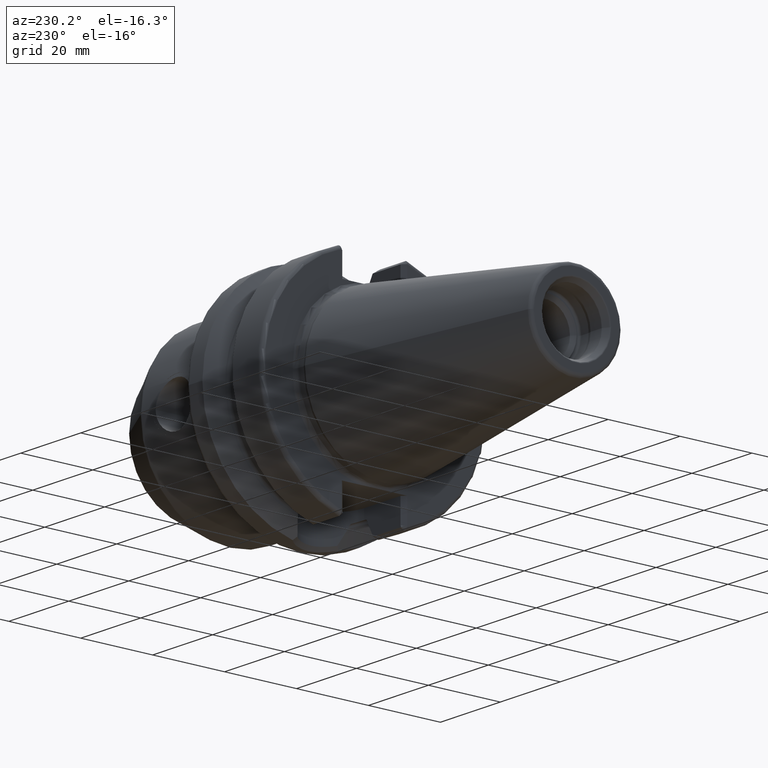
[diagram: clean part render]
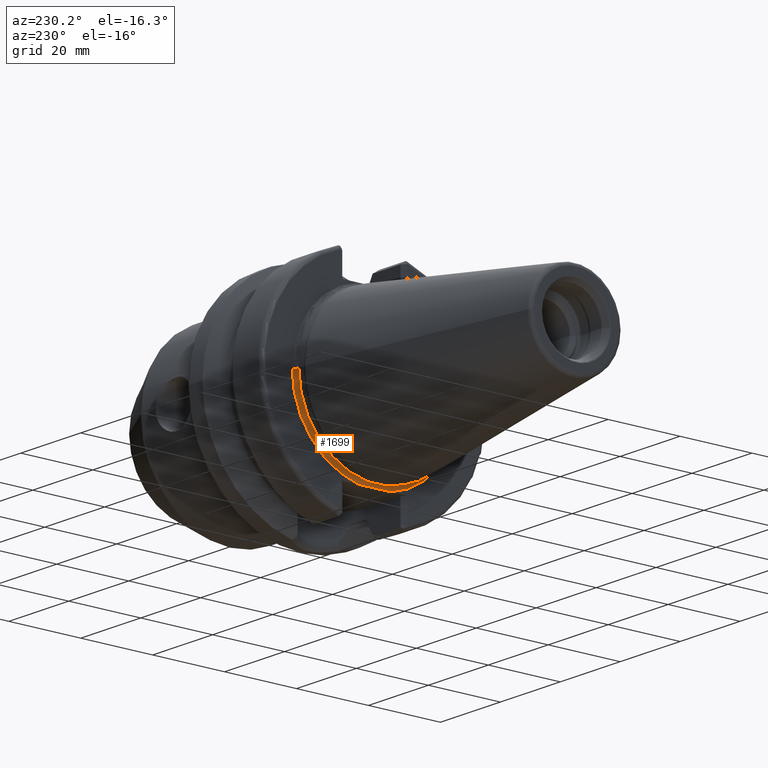
[diagram: same view with one face highlighted and labeled with its STEP entity id]
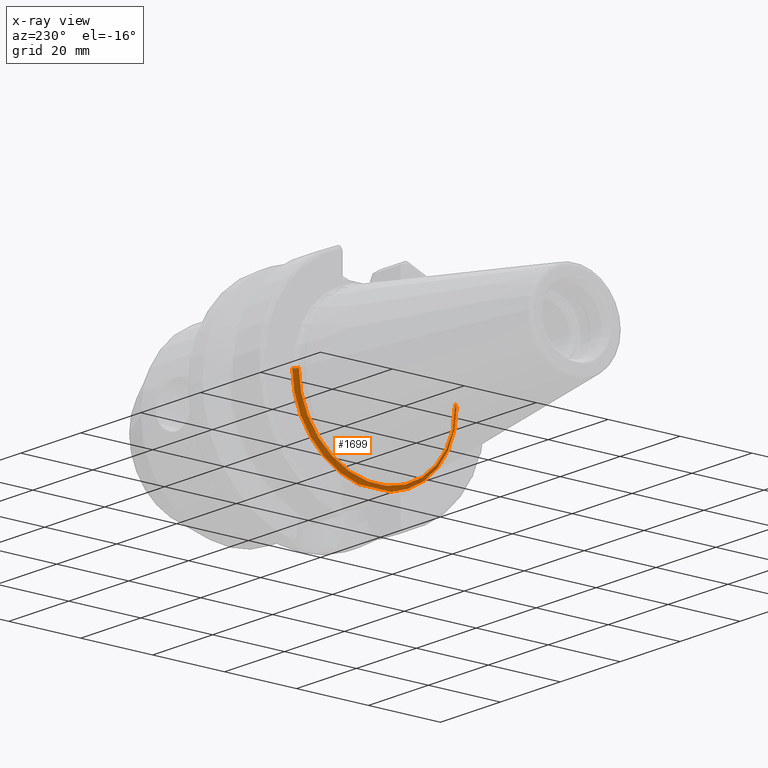
[diagram: x-ray of the same camera — body ghosted, the highlighted face saturated]
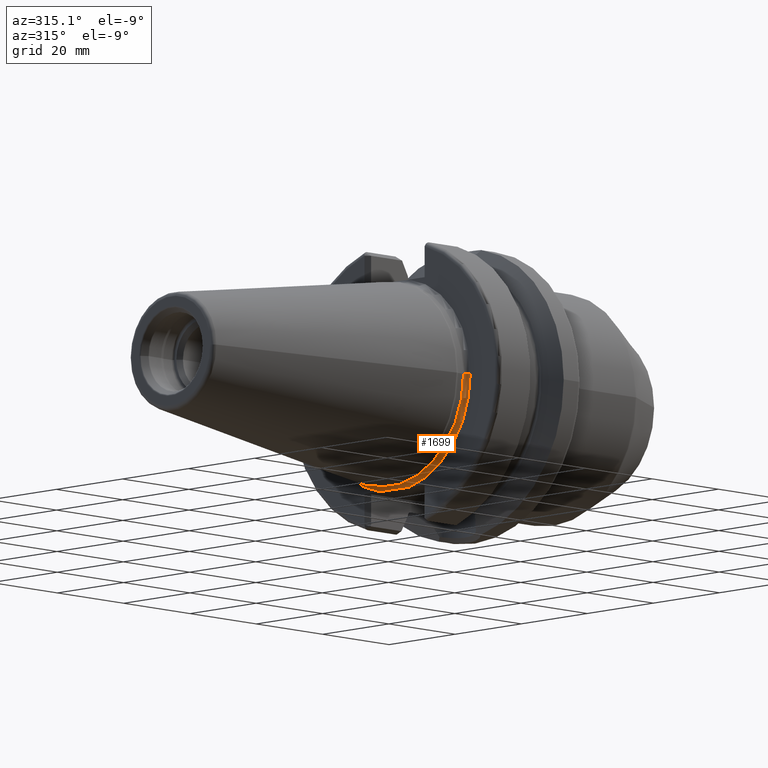
[diagram: same view with one face highlighted and labeled with its STEP entity id]
A machine part, auxiliary view. The second image highlights one B-rep face of the part: STEP entity #1699.
The next image is the same camera in x-ray: the body ghosted, the highlighted face saturated — about 9% of this face is hidden behind the body in this view.
A second angle (auxiliary view) of the same face is appended — the face is thin or edge-on in the first view.
In plain terms, the highlighted toroidal blend (fillet) surface has major radius 22.875 mm and minor (blend) radius 1 mm.
Its self-contained STEP definition (entity closure, byte-faithful):
#91=CARTESIAN_POINT('',(1.E0,0.E0,0.E0));
#92=DIRECTION('',(-1.E0,0.E0,0.E0));
#93=DIRECTION('',(0.E0,1.E0,0.E0));
#94=AXIS2_PLACEMENT_3D('',#91,#92,#93);
#96=CARTESIAN_POINT('',(2.E0,0.E0,0.E0));
#97=DIRECTION('',(-1.E0,0.E0,0.E0));
#98=DIRECTION('',(0.E0,1.E0,0.E0));
#99=AXIS2_PLACEMENT_3D('',#96,#97,#98);
#101=CARTESIAN_POINT('',(1.E0,2.2875E1,0.E0));
#102=DIRECTION('',(0.E0,0.E0,-1.E0));
#103=DIRECTION('',(1.E0,0.E0,0.E0));
#104=AXIS2_PLACEMENT_3D('',#101,#102,#103);
#106=CARTESIAN_POINT('',(1.E0,-2.2875E1,0.E0));
#107=DIRECTION('',(0.E0,0.E0,1.E0));
#108=DIRECTION('',(1.E0,0.E0,0.E0));
#109=AXIS2_PLACEMENT_3D('',#106,#107,#108);
#111=CARTESIAN_POINT('',(2.E0,0.E0,0.E0));
#112=DIRECTION('',(-1.E0,0.E0,0.E0));
#113=DIRECTION('',(0.E0,-1.918678763451E-1,-9.814207650273E-1));
#114=AXIS2_PLACEMENT_3D('',#111,#112,#113);
#116=CARTESIAN_POINT('',(2.E0,4.388977671395E0,-2.245E1));
#117=CARTESIAN_POINT('',(2.E0,3.970864393606E0,-2.245E1));
#118=CARTESIAN_POINT('',(1.981114905491E0,3.134790252882E0,-2.245E1));
#119=CARTESIAN_POINT('',(1.935909306664E0,1.881114481695E0,-2.245E1));
#120=CARTESIAN_POINT('',(1.903922826087E0,6.271978198695E-1,-2.245E1));
#121=CARTESIAN_POINT('',(1.903921553157E0,-6.271174199701E-1,-2.245E1));
#122=CARTESIAN_POINT('',(1.935907277484E0,-1.881058975901E0,-2.245E1));
#123=CARTESIAN_POINT('',(1.981114329553E0,-3.134769380598E0,-2.245E1));
#124=CARTESIAN_POINT('',(2.E0,-3.970858027266E0,-2.245E1));
#125=CARTESIAN_POINT('',(2.E0,-4.388977671395E0,-2.245E1));
#1364=CARTESIAN_POINT('',(2.E0,2.2875E1,0.E0));
#1365=CARTESIAN_POINT('',(1.E0,2.1875E1,0.E0));
#1366=VERTEX_POINT('',#1364);
#1367=VERTEX_POINT('',#1365);
#1370=CARTESIAN_POINT('',(2.E0,-2.2875E1,0.E0));
#1371=CARTESIAN_POINT('',(1.E0,-2.1875E1,0.E0));
#1372=VERTEX_POINT('',#1370);
#1373=VERTEX_POINT('',#1371);
#1442=CARTESIAN_POINT('',(2.E0,4.388977671395E0,-2.245E1));
#1443=VERTEX_POINT('',#1442);
#1444=CARTESIAN_POINT('',(2.E0,-4.388977671395E0,-2.245E1));
#1445=VERTEX_POINT('',#1444);
#1681=CARTESIAN_POINT('',(1.E0,0.E0,0.E0));
#1682=DIRECTION('',(1.E0,0.E0,0.E0));
#1683=DIRECTION('',(0.E0,-1.E0,0.E0));
#1684=AXIS2_PLACEMENT_3D('',#1681,#1682,#1683);
#1685=TOROIDAL_SURFACE('',#1684,2.2875E1,1.E0);
#1687=ORIENTED_EDGE('',*,*,#1686,.F.);
#1689=ORIENTED_EDGE('',*,*,#1688,.T.);
#1690=ORIENTED_EDGE('',*,*,#1676,.T.);
#1692=ORIENTED_EDGE('',*,*,#1691,.F.);
#1694=ORIENTED_EDGE('',*,*,#1693,.F.);
#1696=ORIENTED_EDGE('',*,*,#1695,.F.);
#1697=EDGE_LOOP('',(#1687,#1689,#1690,#1692,#1694,#1696));
#1698=FACE_OUTER_BOUND('',#1697,.F.);
#1699=ADVANCED_FACE('',(#1698),#1685,.F.);
#95=CIRCLE('',#94,2.1875E1);
#100=CIRCLE('',#99,2.2875E1);
#105=CIRCLE('',#104,1.E0);
#110=CIRCLE('',#109,1.E0);
#115=CIRCLE('',#114,2.2875E1);
#126=B_SPLINE_CURVE_WITH_KNOTS('',3,(#116,#117,#118,#119,#120,#121,#122,#123,
#124,#125),.UNSPECIFIED.,.F.,.F.,(4,1,1,1,1,1,1,4),(0.E0,1.428571428571E-1,
2.857142857143E-1,4.285714285714E-1,5.714285714286E-1,7.142857142857E-1,
8.571428571429E-1,1.E0),.UNSPECIFIED.);
#1676=EDGE_CURVE('',#1367,#1373,#95,.T.);
#1686=EDGE_CURVE('',#1366,#1443,#100,.T.);
#1688=EDGE_CURVE('',#1366,#1367,#105,.T.);
#1691=EDGE_CURVE('',#1372,#1373,#110,.T.);
#1693=EDGE_CURVE('',#1445,#1372,#115,.T.);
#1695=EDGE_CURVE('',#1443,#1445,#126,.T.);